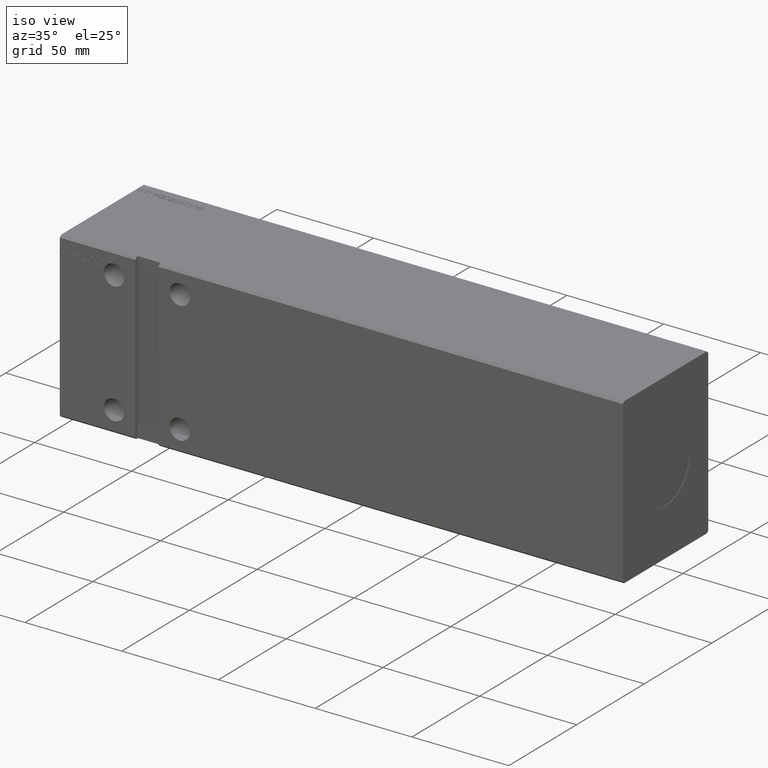
[diagram: clean part render]
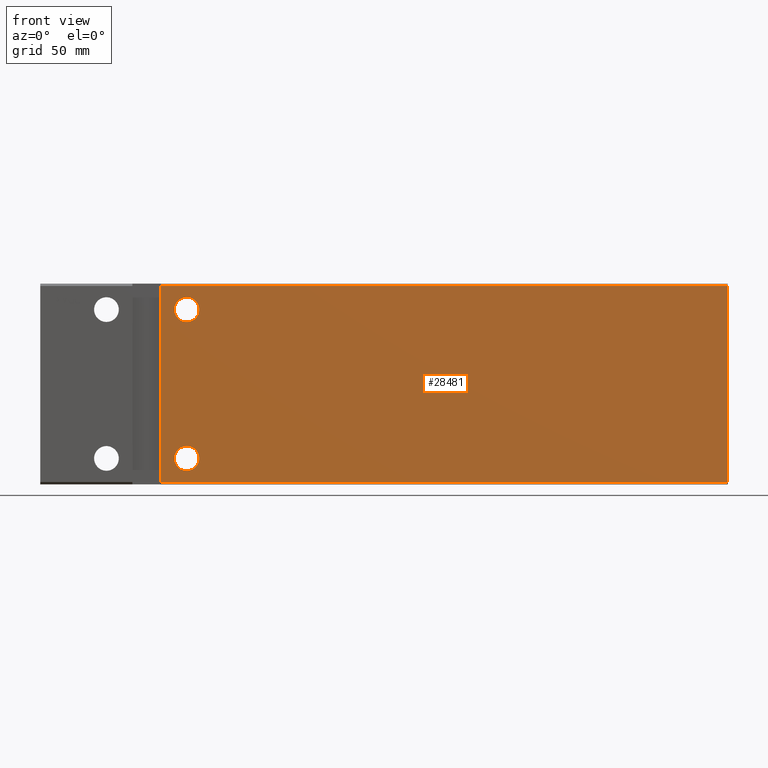
[diagram: tour spotlight — one face highlighted and labeled with its STEP entity id]
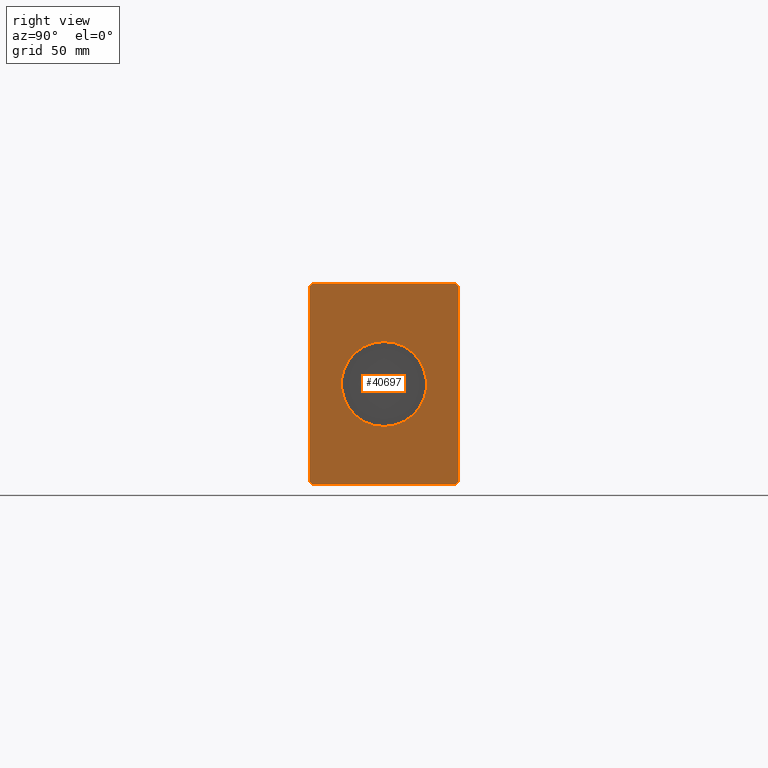
[diagram: tour spotlight — one face highlighted and labeled with its STEP entity id]
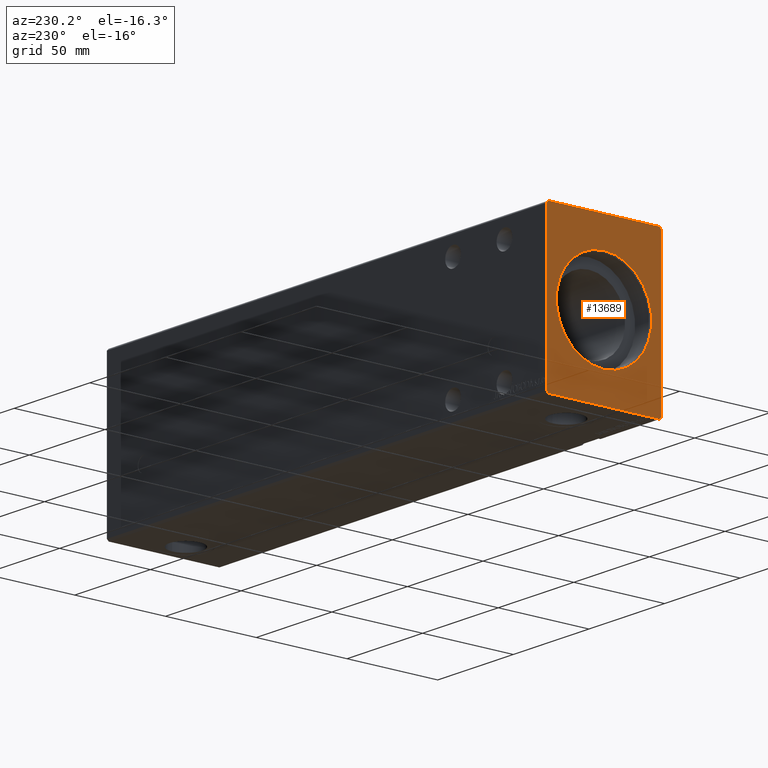
[diagram: tour spotlight — one face highlighted and labeled with its STEP entity id]
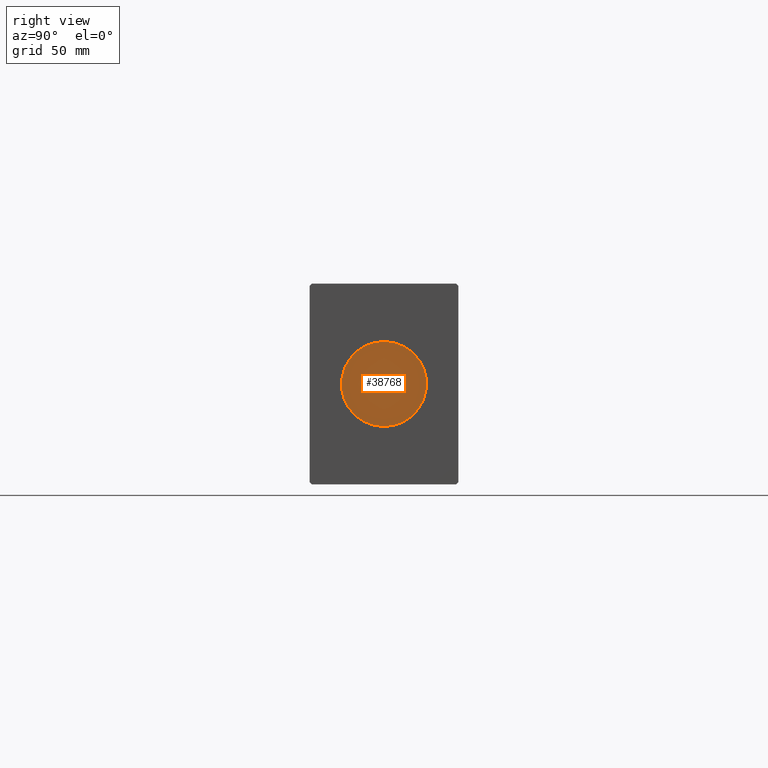
[diagram: tour spotlight — one face highlighted and labeled with its STEP entity id]
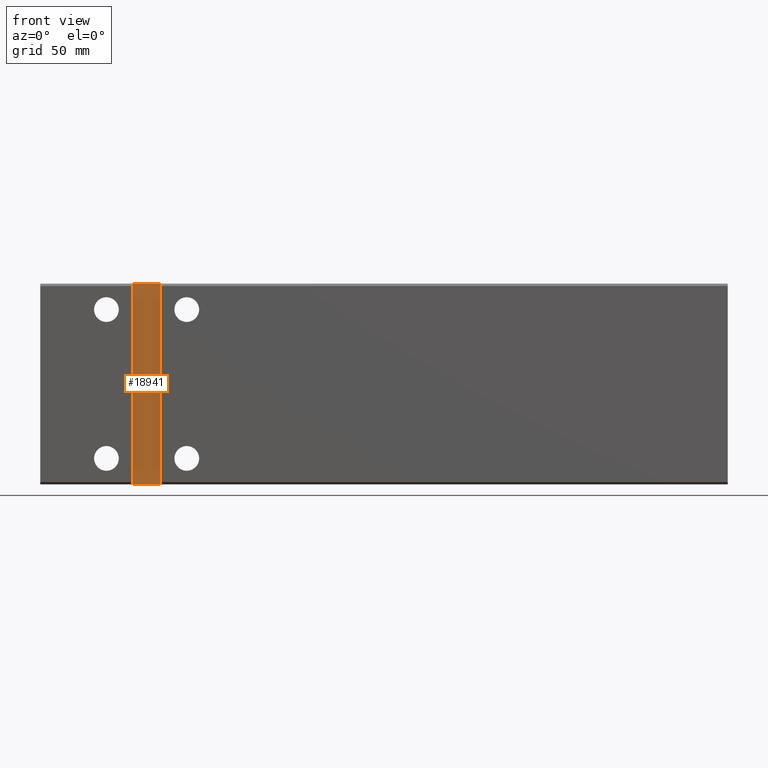
[diagram: tour spotlight — one face highlighted and labeled with its STEP entity id]
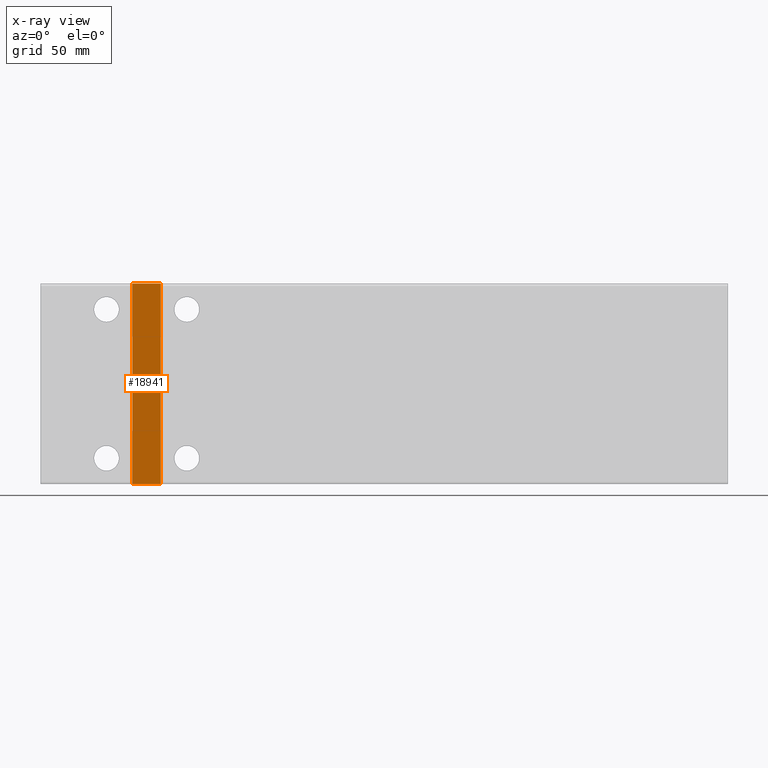
[diagram: x-ray of the same camera — body ghosted, this tour face saturated]
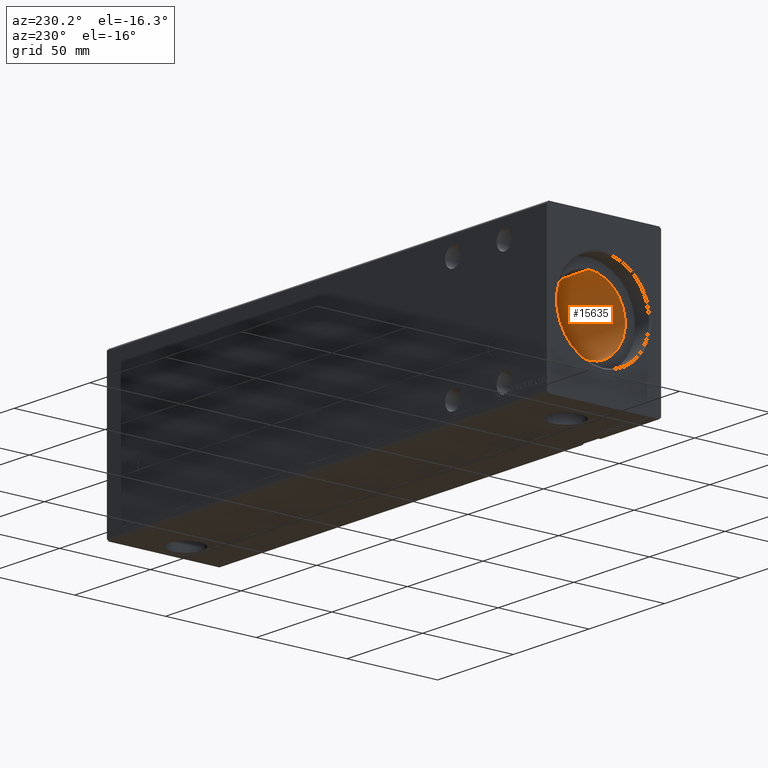
[diagram: tour spotlight — one face highlighted and labeled with its STEP entity id]
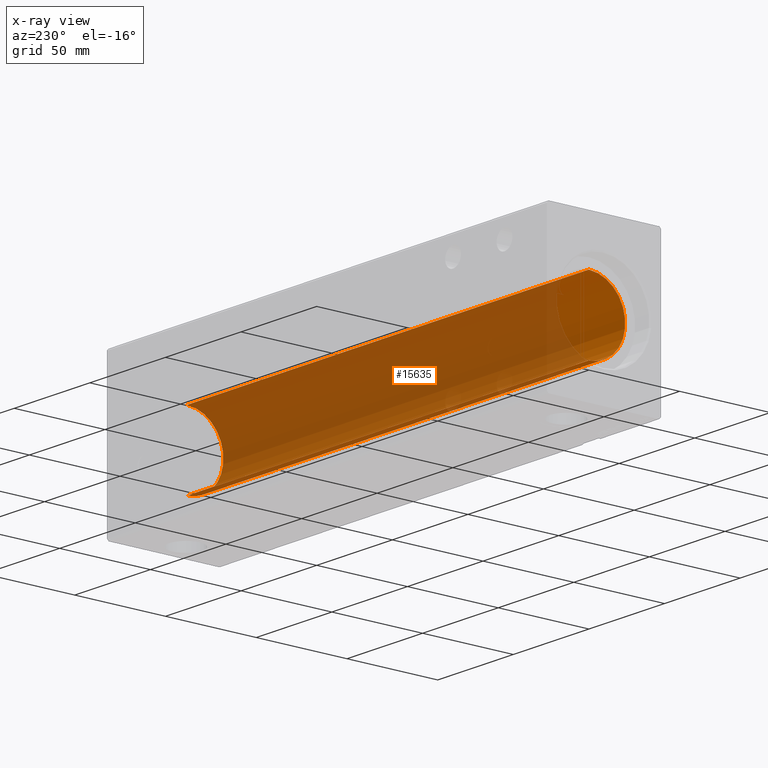
[diagram: x-ray of the same camera — body ghosted, this tour face saturated]
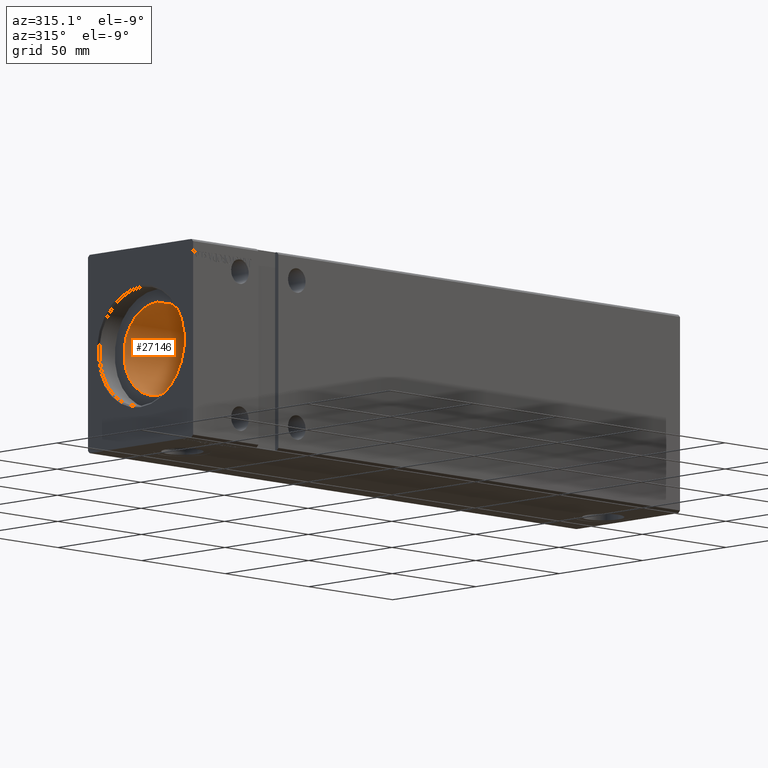
[diagram: tour spotlight — one face highlighted and labeled with its STEP entity id]
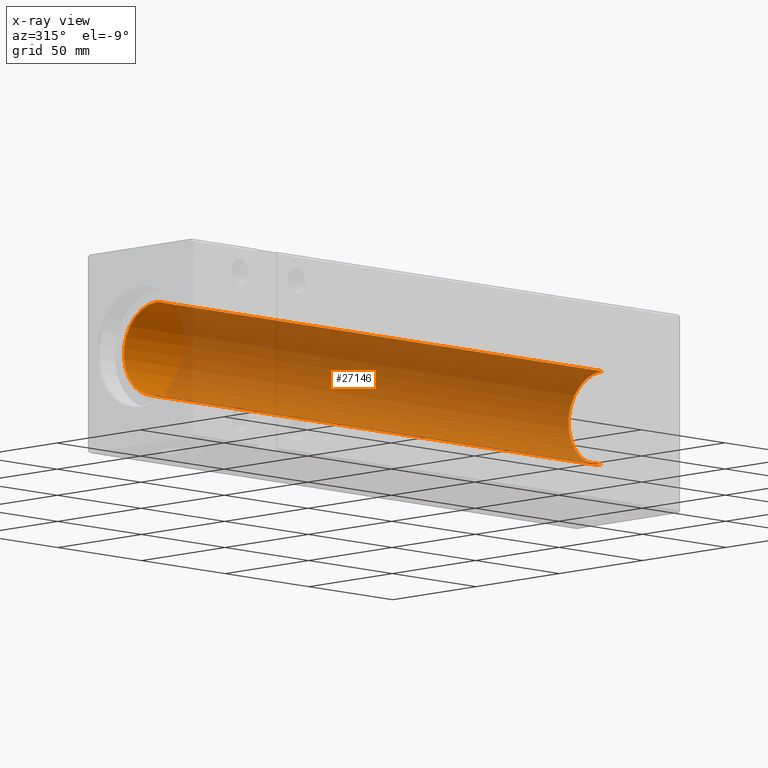
[diagram: x-ray of the same camera — body ghosted, this tour face saturated]
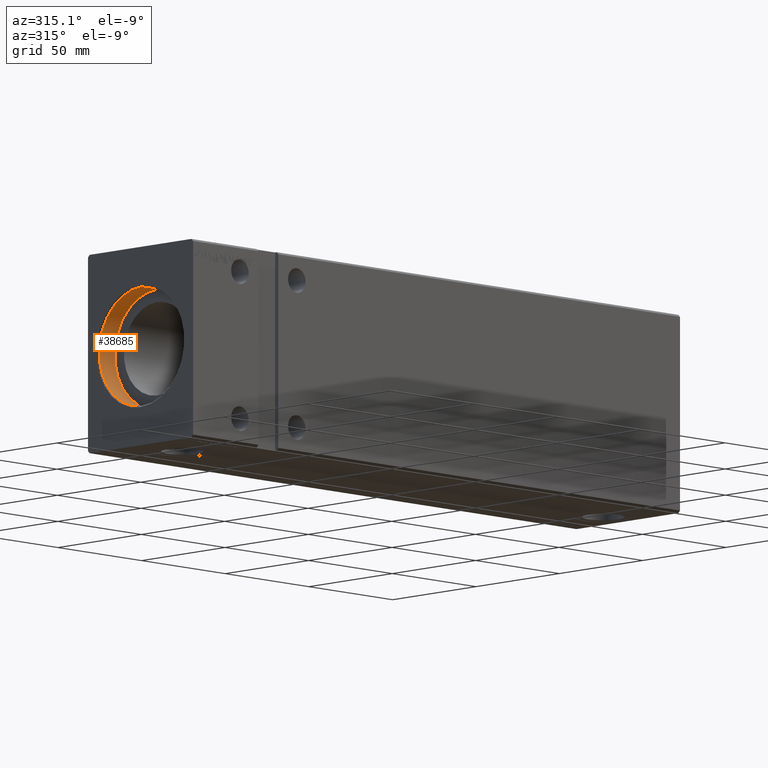
[diagram: tour spotlight — one face highlighted and labeled with its STEP entity id]
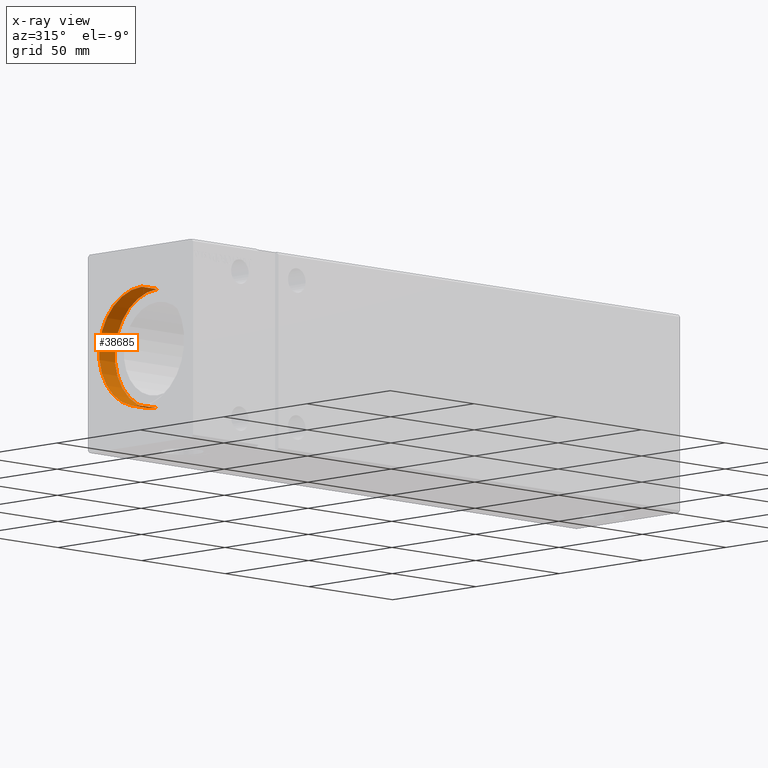
[diagram: x-ray of the same camera — body ghosted, this tour face saturated]
A machine part: a face-by-face anatomy tour. The part has 781 B-rep faces; the first image is the clean iso view, then the 8 largest visible faces are spotlighted one at a time (largest first), each with its STEP entity span.

Face 1 — front view, entity #28481. In plain terms, the highlighted planar face has unit normal (-0, 1, 0).
Definition (entity closure, byte-faithful):
#548 = AXIS2_PLACEMENT_3D ( 'NONE', #27003, #14590, #39843 ) ;
#619 = VERTEX_POINT ( 'NONE', #16780 ) ;
#707 = DIRECTION ( 'NONE',  ( 0.000000000000000000, -1.000000000000000000, -0.000000000000000000 ) ) ;
#1137 = DIRECTION ( 'NONE',  ( 0.000000000000000000, 0.000000000000000000, 1.000000000000000000 ) ) ;
#1741 = FACE_OUTER_BOUND ( 'NONE', #17863, .T. ) ;
#1945 = FACE_BOUND ( 'NONE', #23347, .T. ) ;
#2305 = DIRECTION ( 'NONE',  ( -3.265361837132813093E-16, -0.000000000000000000, 1.000000000000000000 ) ) ;
#2805 = DIRECTION ( 'NONE',  ( -0.000000000000000000, 1.000000000000000000, 0.000000000000000000 ) ) ;
#3089 = ORIENTED_EDGE ( 'NONE', *, *, #27446, .F. ) ;
#3145 = ORIENTED_EDGE ( 'NONE', *, *, #27920, .F. ) ;
#3218 = LINE ( 'NONE', #10261, #13613 ) ;
#3353 = CARTESIAN_POINT ( 'NONE',  ( 62.00000000000000711, -31.50000000000000000, -26.25000000000000355 ) ) ;
#4003 = EDGE_CURVE ( 'NONE', #6418, #18357, #5825, .T. ) ;
#4309 = CARTESIAN_POINT ( 'NONE',  ( 291.0000000000000000, -31.50000000000000000, -41.50000000000000711 ) ) ;
#5825 = LINE ( 'NONE', #30673, #30302 ) ;
#6418 = VERTEX_POINT ( 'NONE', #20752 ) ;
#6731 = ORIENTED_EDGE ( 'NONE', *, *, #12980, .F. ) ;
#7707 = DIRECTION ( 'NONE',  ( 0.000000000000000000, 0.000000000000000000, 1.000000000000000000 ) ) ;
#9600 = CARTESIAN_POINT ( 'NONE',  ( 62.00000000000000000, -31.50000000000000000, 31.50000000000000000 ) ) ;
#10261 = CARTESIAN_POINT ( 'NONE',  ( 291.0000000000000000, -31.50000000000000000, 41.49999999999999289 ) ) ;
#10438 = AXIS2_PLACEMENT_3D ( 'NONE', #9600, #23639, #7707 ) ;
#10744 = VERTEX_POINT ( 'NONE', #36854 ) ;
#10825 = CARTESIAN_POINT ( 'NONE',  ( 62.00000000000000711, -31.50000000000000000, -36.75000000000000000 ) ) ;
#11296 = VECTOR ( 'NONE', #22395, 1000.000000000000000 ) ;
#11308 = DIRECTION ( 'NONE',  ( 0.000000000000000000, 0.000000000000000000, 1.000000000000000000 ) ) ;
#12004 = EDGE_LOOP ( 'NONE', ( #3145, #6731 ) ) ;
#12980 = EDGE_CURVE ( 'NONE', #39891, #619, #33788, .T. ) ;
#13154 = CARTESIAN_POINT ( 'NONE',  ( 62.00000000000000000, -31.50000000000000000, 31.50000000000000000 ) ) ;
#13613 = VECTOR ( 'NONE', #15848, 1000.000000000000000 ) ;
#13748 = CIRCLE ( 'NONE', #10438, 5.250000000000004441 ) ;
#13986 = PLANE ( 'NONE',  #548 ) ;
#14386 = FACE_BOUND ( 'NONE', #12004, .T. ) ;
#14426 = DIRECTION ( 'NONE',  ( -1.000000000000000000, -0.000000000000000000, -0.000000000000000000 ) ) ;
#14480 = VERTEX_POINT ( 'NONE', #3353 ) ;
#14590 = DIRECTION ( 'NONE',  ( -0.000000000000000000, 1.000000000000000000, 0.000000000000000000 ) ) ;
#15519 = ORIENTED_EDGE ( 'NONE', *, *, #31100, .F. ) ;
#15848 = DIRECTION ( 'NONE',  ( -1.000000000000000000, -0.000000000000000000, -0.000000000000000000 ) ) ;
#16132 = AXIS2_PLACEMENT_3D ( 'NONE', #20822, #2805, #11308 ) ;
#16780 = CARTESIAN_POINT ( 'NONE',  ( 62.00000000000000000, -31.50000000000000000, 26.24999999999999645 ) ) ;
#17863 = EDGE_LOOP ( 'NONE', ( #34706, #22478, #3089, #15519 ) ) ;
#18357 = VERTEX_POINT ( 'NONE', #24037 ) ;
#19584 = DIRECTION ( 'NONE',  ( -0.000000000000000000, 1.000000000000000000, 0.000000000000000000 ) ) ;
#20553 = VERTEX_POINT ( 'NONE', #28531 ) ;
#20752 = CARTESIAN_POINT ( 'NONE',  ( 51.00000000000002132, -31.50000000000000000, -41.50000000000000711 ) ) ;
#20822 = CARTESIAN_POINT ( 'NONE',  ( 62.00000000000000711, -31.50000000000000000, -31.50000000000000000 ) ) ;
#21774 = EDGE_CURVE ( 'NONE', #23650, #14480, #23403, .T. ) ;
#22395 = DIRECTION ( 'NONE',  ( 0.000000000000000000, 0.000000000000000000, -1.000000000000000000 ) ) ;
#22478 = ORIENTED_EDGE ( 'NONE', *, *, #4003, .F. ) ;
#22529 = EDGE_CURVE ( 'NONE', #20553, #18357, #3218, .T. ) ;
#23347 = EDGE_LOOP ( 'NONE', ( #39012, #28791 ) ) ;
#23403 = CIRCLE ( 'NONE', #16132, 5.249999999999997335 ) ;
#23639 = DIRECTION ( 'NONE',  ( 0.000000000000000000, -1.000000000000000000, -0.000000000000000000 ) ) ;
#23650 = VERTEX_POINT ( 'NONE', #10825 ) ;
#24037 = CARTESIAN_POINT ( 'NONE',  ( 51.00000000000000000, -31.50000000000000000, 41.49999999999999289 ) ) ;
#25696 = LINE ( 'NONE', #32326, #11296 ) ;
#25758 = DIRECTION ( 'NONE',  ( 0.000000000000000000, 0.000000000000000000, 1.000000000000000000 ) ) ;
#27003 = CARTESIAN_POINT ( 'NONE',  ( 291.0000000000000000, -31.50000000000000000, 41.49999999999999289 ) ) ;
#27446 = EDGE_CURVE ( 'NONE', #10744, #6418, #36373, .T. ) ;
#27920 = EDGE_CURVE ( 'NONE', #619, #39891, #13748, .T. ) ;
#28481 = ADVANCED_FACE ( 'NONE', ( #1945, #1741, #14386 ), #13986, .F. ) ;
#28531 = CARTESIAN_POINT ( 'NONE',  ( 291.0000000000000000, -31.50000000000000000, 41.49999999999999289 ) ) ;
#28791 = ORIENTED_EDGE ( 'NONE', *, *, #31628, .T. ) ;
#29305 = CARTESIAN_POINT ( 'NONE',  ( 62.00000000000000711, -31.50000000000000000, -31.50000000000000000 ) ) ;
#30302 = VECTOR ( 'NONE', #2305, 1000.000000000000000 ) ;
#30673 = CARTESIAN_POINT ( 'NONE',  ( 51.00000000000000000, -31.50000000000000000, 42.49999999999999289 ) ) ;
#30790 = VECTOR ( 'NONE', #14426, 1000.000000000000000 ) ;
#31100 = EDGE_CURVE ( 'NONE', #20553, #10744, #25696, .T. ) ;
#31628 = EDGE_CURVE ( 'NONE', #14480, #23650, #33777, .T. ) ;
#32326 = CARTESIAN_POINT ( 'NONE',  ( 291.0000000000000000, -31.50000000000000000, 41.49999999999999289 ) ) ;
#33777 = CIRCLE ( 'NONE', #39742, 5.249999999999997335 ) ;
#33788 = CIRCLE ( 'NONE', #39729, 5.250000000000004441 ) ;
#34706 = ORIENTED_EDGE ( 'NONE', *, *, #22529, .T. ) ;
#36373 = LINE ( 'NONE', #4309, #30790 ) ;
#36854 = CARTESIAN_POINT ( 'NONE',  ( 291.0000000000000000, -31.50000000000000000, -41.50000000000000711 ) ) ;
#37276 = CARTESIAN_POINT ( 'NONE',  ( 62.00000000000000000, -31.50000000000000000, 36.75000000000000711 ) ) ;
#39012 = ORIENTED_EDGE ( 'NONE', *, *, #21774, .T. ) ;
#39729 = AXIS2_PLACEMENT_3D ( 'NONE', #13154, #707, #25758 ) ;
#39742 = AXIS2_PLACEMENT_3D ( 'NONE', #29305, #19584, #1137 ) ;
#39843 = DIRECTION ( 'NONE',  ( 0.000000000000000000, -0.000000000000000000, 1.000000000000000000 ) ) ;
#39891 = VERTEX_POINT ( 'NONE', #37276 ) ;

Face 2 — right view, entity #40697. In plain terms, the highlighted planar face has unit normal (1, 0, 0).
Definition (entity closure, byte-faithful):
#527 = LINE ( 'NONE', #34911, #29815 ) ;
#1272 = EDGE_CURVE ( 'NONE', #10744, #10932, #1682, .T. ) ;
#1682 = LINE ( 'NONE', #39170, #34332 ) ;
#2146 = DIRECTION ( 'NONE',  ( 0.000000000000000000, -0.7071067811865474617, 0.7071067811865474617 ) ) ;
#2715 = ORIENTED_EDGE ( 'NONE', *, *, #34753, .T. ) ;
#3411 = DIRECTION ( 'NONE',  ( 1.000000000000000000, 0.000000000000000000, 0.000000000000000000 ) ) ;
#3517 = VECTOR ( 'NONE', #29175, 1000.000000000000000 ) ;
#3724 = LINE ( 'NONE', #22964, #3517 ) ;
#4144 = AXIS2_PLACEMENT_3D ( 'NONE', #31215, #3411, #16047 ) ;
#5262 = LINE ( 'NONE', #30512, #14331 ) ;
#5412 = DIRECTION ( 'NONE',  ( 0.000000000000000000, 1.000000000000000000, 0.000000000000000000 ) ) ;
#8017 = ORIENTED_EDGE ( 'NONE', *, *, #1272, .T. ) ;
#8217 = ORIENTED_EDGE ( 'NONE', *, *, #31100, .T. ) ;
#8712 = LINE ( 'NONE', #40165, #32622 ) ;
#9018 = VERTEX_POINT ( 'NONE', #24620 ) ;
#10453 = CARTESIAN_POINT ( 'NONE',  ( 291.0000000000000000, 30.50000000000001776, -42.50000000000000711 ) ) ;
#10744 = VERTEX_POINT ( 'NONE', #36854 ) ;
#10932 = VERTEX_POINT ( 'NONE', #29565 ) ;
#10974 = ORIENTED_EDGE ( 'NONE', *, *, #23251, .F. ) ;
#11296 = VECTOR ( 'NONE', #22395, 1000.000000000000000 ) ;
#12335 = CARTESIAN_POINT ( 'NONE',  ( 291.0000000000000000, 30.50000000000001421, 42.49999999999999289 ) ) ;
#12765 = ORIENTED_EDGE ( 'NONE', *, *, #32200, .T. ) ;
#13208 = EDGE_CURVE ( 'NONE', #14593, #13685, #26781, .T. ) ;
#13685 = VERTEX_POINT ( 'NONE', #40509 ) ;
#14331 = VECTOR ( 'NONE', #2146, 1000.000000000000114 ) ;
#14593 = VERTEX_POINT ( 'NONE', #27680 ) ;
#14742 = DIRECTION ( 'NONE',  ( 0.000000000000000000, 0.7071067811865451302, -0.7071067811865500152 ) ) ;
#15771 = EDGE_CURVE ( 'NONE', #31843, #19288, #39143, .T. ) ;
#16047 = DIRECTION ( 'NONE',  ( 0.000000000000000000, 0.000000000000000000, -1.000000000000000000 ) ) ;
#16821 = CIRCLE ( 'NONE', #22116, 18.00000000000000000 ) ;
#17527 = EDGE_CURVE ( 'NONE', #13685, #34796, #3724, .T. ) ;
#18385 = EDGE_CURVE ( 'NONE', #10932, #14593, #8712, .T. ) ;
#18800 = PLANE ( 'NONE',  #29899 ) ;
#19288 = VERTEX_POINT ( 'NONE', #30711 ) ;
#19352 = LINE ( 'NONE', #12335, #36505 ) ;
#20553 = VERTEX_POINT ( 'NONE', #28531 ) ;
#20640 = EDGE_LOOP ( 'NONE', ( #26652, #2715, #12765, #8217, #8017, #40490, #21136, #40086 ) ) ;
#21042 = DIRECTION ( 'NONE',  ( 1.000000000000000000, 0.000000000000000000, 0.000000000000000000 ) ) ;
#21136 = ORIENTED_EDGE ( 'NONE', *, *, #13208, .T. ) ;
#21234 = VECTOR ( 'NONE', #23073, 999.9999999999998863 ) ;
#21369 = CARTESIAN_POINT ( 'NONE',  ( 291.0000000000000000, 0.000000000000000000, -18.00000000000000000 ) ) ;
#22116 = AXIS2_PLACEMENT_3D ( 'NONE', #30970, #21042, #33666 ) ;
#22395 = DIRECTION ( 'NONE',  ( 0.000000000000000000, 0.000000000000000000, -1.000000000000000000 ) ) ;
#22487 = DIRECTION ( 'NONE',  ( 0.000000000000000000, -0.7071067811865462405, -0.7071067811865489050 ) ) ;
#22964 = CARTESIAN_POINT ( 'NONE',  ( 291.0000000000000000, 31.50000000000001421, -41.50000000000000711 ) ) ;
#23073 = DIRECTION ( 'NONE',  ( 0.000000000000000000, 0.7071067811865462405, 0.7071067811865489050 ) ) ;
#23251 = EDGE_CURVE ( 'NONE', #19288, #31843, #16821, .T. ) ;
#24349 = VERTEX_POINT ( 'NONE', #37977 ) ;
#24620 = CARTESIAN_POINT ( 'NONE',  ( 291.0000000000000000, -30.50000000000000355, 42.49999999999999289 ) ) ;
#25696 = LINE ( 'NONE', #32326, #11296 ) ;
#26652 = ORIENTED_EDGE ( 'NONE', *, *, #27826, .T. ) ;
#26781 = LINE ( 'NONE', #10453, #21234 ) ;
#27680 = CARTESIAN_POINT ( 'NONE',  ( 291.0000000000000000, 30.50000000000001776, -42.50000000000000711 ) ) ;
#27826 = EDGE_CURVE ( 'NONE', #34796, #24349, #5262, .T. ) ;
#28045 = CARTESIAN_POINT ( 'NONE',  ( 291.0000000000000000, 31.50000000000001421, 41.49999999999999289 ) ) ;
#28307 = DIRECTION ( 'NONE',  ( 0.000000000000000000, 0.000000000000000000, -1.000000000000000000 ) ) ;
#28531 = CARTESIAN_POINT ( 'NONE',  ( 291.0000000000000000, -31.50000000000000000, 41.49999999999999289 ) ) ;
#29175 = DIRECTION ( 'NONE',  ( 0.000000000000000000, 0.000000000000000000, 1.000000000000000000 ) ) ;
#29565 = CARTESIAN_POINT ( 'NONE',  ( 291.0000000000000000, -30.50000000000000711, -42.50000000000000711 ) ) ;
#29815 = VECTOR ( 'NONE', #22487, 999.9999999999998863 ) ;
#29899 = AXIS2_PLACEMENT_3D ( 'NONE', #34526, #31420, #28307 ) ;
#30512 = CARTESIAN_POINT ( 'NONE',  ( 291.0000000000000000, 31.50000000000001421, 41.49999999999999289 ) ) ;
#30711 = CARTESIAN_POINT ( 'NONE',  ( 291.0000000000000000, 2.204364238465235428E-15, 18.00000000000000000 ) ) ;
#30970 = CARTESIAN_POINT ( 'NONE',  ( 291.0000000000000000, 0.000000000000000000, 0.000000000000000000 ) ) ;
#31100 = EDGE_CURVE ( 'NONE', #20553, #10744, #25696, .T. ) ;
#31215 = CARTESIAN_POINT ( 'NONE',  ( 291.0000000000000000, 0.000000000000000000, 0.000000000000000000 ) ) ;
#31362 = DIRECTION ( 'NONE',  ( 0.000000000000000000, -1.000000000000000000, 0.000000000000000000 ) ) ;
#31420 = DIRECTION ( 'NONE',  ( 1.000000000000000000, 0.000000000000000000, 0.000000000000000000 ) ) ;
#31622 = FACE_BOUND ( 'NONE', #38717, .T. ) ;
#31843 = VERTEX_POINT ( 'NONE', #21369 ) ;
#31965 = ORIENTED_EDGE ( 'NONE', *, *, #15771, .F. ) ;
#32200 = EDGE_CURVE ( 'NONE', #9018, #20553, #527, .T. ) ;
#32326 = CARTESIAN_POINT ( 'NONE',  ( 291.0000000000000000, -31.50000000000000000, 41.49999999999999289 ) ) ;
#32622 = VECTOR ( 'NONE', #5412, 1000.000000000000000 ) ;
#33666 = DIRECTION ( 'NONE',  ( 0.000000000000000000, 0.000000000000000000, -1.000000000000000000 ) ) ;
#34332 = VECTOR ( 'NONE', #14742, 1000.000000000000114 ) ;
#34526 = CARTESIAN_POINT ( 'NONE',  ( 291.0000000000000000, 0.000000000000000000, 0.000000000000000000 ) ) ;
#34753 = EDGE_CURVE ( 'NONE', #24349, #9018, #19352, .T. ) ;
#34796 = VERTEX_POINT ( 'NONE', #28045 ) ;
#34911 = CARTESIAN_POINT ( 'NONE',  ( 291.0000000000000000, -30.50000000000000355, 42.49999999999999289 ) ) ;
#36505 = VECTOR ( 'NONE', #31362, 1000.000000000000000 ) ;
#36854 = CARTESIAN_POINT ( 'NONE',  ( 291.0000000000000000, -31.50000000000000000, -41.50000000000000711 ) ) ;
#37977 = CARTESIAN_POINT ( 'NONE',  ( 291.0000000000000000, 30.50000000000001421, 42.49999999999999289 ) ) ;
#38717 = EDGE_LOOP ( 'NONE', ( #31965, #10974 ) ) ;
#39143 = CIRCLE ( 'NONE', #4144, 18.00000000000000000 ) ;
#39170 = CARTESIAN_POINT ( 'NONE',  ( 291.0000000000000000, -31.50000000000000000, -41.50000000000000711 ) ) ;
#40086 = ORIENTED_EDGE ( 'NONE', *, *, #17527, .T. ) ;
#40165 = CARTESIAN_POINT ( 'NONE',  ( 291.0000000000000000, -30.50000000000000711, -42.50000000000000711 ) ) ;
#40490 = ORIENTED_EDGE ( 'NONE', *, *, #18385, .T. ) ;
#40509 = CARTESIAN_POINT ( 'NONE',  ( 291.0000000000000000, 31.50000000000001421, -41.50000000000000711 ) ) ;
#40697 = ADVANCED_FACE ( 'NONE', ( #31622, #40732 ), #18800, .T. ) ;
#40732 = FACE_OUTER_BOUND ( 'NONE', #20640, .T. ) ;

Face 3 — auxiliary view, entity #13689. In plain terms, the highlighted planar face has unit normal (1, 0, 0).
Definition (entity closure, byte-faithful):
#1071 = EDGE_CURVE ( 'NONE', #5371, #28079, #24909, .T. ) ;
#1255 = LINE ( 'NONE', #32933, #39820 ) ;
#1426 = VERTEX_POINT ( 'NONE', #34181 ) ;
#1455 = EDGE_LOOP ( 'NONE', ( #2265, #15347, #8514, #4688, #19225, #11322, #29429, #28744 ) ) ;
#2265 = ORIENTED_EDGE ( 'NONE', *, *, #23769, .F. ) ;
#2458 = LINE ( 'NONE', #40751, #13244 ) ;
#2765 = CARTESIAN_POINT ( 'NONE',  ( 0.000000000000000000, 31.50000000000001421, -41.50000000000000711 ) ) ;
#3189 = VERTEX_POINT ( 'NONE', #37695 ) ;
#4688 = ORIENTED_EDGE ( 'NONE', *, *, #34693, .F. ) ;
#5225 = DIRECTION ( 'NONE',  ( 0.000000000000000000, 0.000000000000000000, -1.000000000000000000 ) ) ;
#5246 = CARTESIAN_POINT ( 'NONE',  ( 0.000000000000000000, 30.50000000000001421, 42.49999999999999289 ) ) ;
#5362 = CIRCLE ( 'NONE', #28491, 26.20000000000000284 ) ;
#5371 = VERTEX_POINT ( 'NONE', #16625 ) ;
#6137 = VERTEX_POINT ( 'NONE', #30171 ) ;
#7306 = DIRECTION ( 'NONE',  ( 0.000000000000000000, -0.7071067811865474617, 0.7071067811865474617 ) ) ;
#7373 = EDGE_CURVE ( 'NONE', #6137, #5371, #10488, .T. ) ;
#7582 = CARTESIAN_POINT ( 'NONE',  ( 0.000000000000000000, 30.50000000000001776, -42.50000000000000711 ) ) ;
#8178 = VECTOR ( 'NONE', #18090, 1000.000000000000000 ) ;
#8249 = VECTOR ( 'NONE', #7306, 1000.000000000000114 ) ;
#8296 = EDGE_CURVE ( 'NONE', #34002, #1426, #2458, .T. ) ;
#8514 = ORIENTED_EDGE ( 'NONE', *, *, #7373, .F. ) ;
#9464 = DIRECTION ( 'NONE',  ( 1.000000000000000000, 0.000000000000000000, 0.000000000000000000 ) ) ;
#10488 = LINE ( 'NONE', #7582, #15833 ) ;
#11224 = LINE ( 'NONE', #35666, #8249 ) ;
#11322 = ORIENTED_EDGE ( 'NONE', *, *, #27351, .F. ) ;
#11961 = FACE_BOUND ( 'NONE', #32813, .T. ) ;
#12579 = AXIS2_PLACEMENT_3D ( 'NONE', #36699, #14758, #5225 ) ;
#13224 = CARTESIAN_POINT ( 'NONE',  ( 0.000000000000000000, -31.50000000000000000, 41.49999999999999289 ) ) ;
#13244 = VECTOR ( 'NONE', #21917, 999.9999999999998863 ) ;
#13689 = ADVANCED_FACE ( 'NONE', ( #11961, #40909 ), #25185, .F. ) ;
#14592 = CARTESIAN_POINT ( 'NONE',  ( 0.000000000000000000, 30.50000000000001421, 42.49999999999999289 ) ) ;
#14697 = VECTOR ( 'NONE', #40466, 1000.000000000000000 ) ;
#14758 = DIRECTION ( 'NONE',  ( 1.000000000000000000, 0.000000000000000000, 0.000000000000000000 ) ) ;
#15347 = ORIENTED_EDGE ( 'NONE', *, *, #1071, .F. ) ;
#15408 = EDGE_CURVE ( 'NONE', #19869, #25300, #1255, .T. ) ;
#15833 = VECTOR ( 'NONE', #22907, 999.9999999999998863 ) ;
#15872 = CARTESIAN_POINT ( 'NONE',  ( 0.000000000000000000, 0.000000000000000000, 0.000000000000000000 ) ) ;
#16625 = CARTESIAN_POINT ( 'NONE',  ( 0.000000000000000000, 31.50000000000001421, -41.50000000000000711 ) ) ;
#17258 = LINE ( 'NONE', #5246, #8178 ) ;
#17414 = DIRECTION ( 'NONE',  ( 0.000000000000000000, 0.7071067811865451302, -0.7071067811865500152 ) ) ;
#18090 = DIRECTION ( 'NONE',  ( 0.000000000000000000, -1.000000000000000000, 0.000000000000000000 ) ) ;
#19225 = ORIENTED_EDGE ( 'NONE', *, *, #15408, .F. ) ;
#19274 = EDGE_CURVE ( 'NONE', #29686, #34002, #17258, .T. ) ;
#19869 = VERTEX_POINT ( 'NONE', #30202 ) ;
#21016 = CARTESIAN_POINT ( 'NONE',  ( 0.000000000000000000, -30.50000000000000711, -42.50000000000000711 ) ) ;
#21775 = VECTOR ( 'NONE', #34226, 1000.000000000000000 ) ;
#21917 = DIRECTION ( 'NONE',  ( 0.000000000000000000, -0.7071067811865462405, -0.7071067811865489050 ) ) ;
#21985 = VERTEX_POINT ( 'NONE', #40984 ) ;
#22907 = DIRECTION ( 'NONE',  ( 0.000000000000000000, 0.7071067811865462405, 0.7071067811865489050 ) ) ;
#23769 = EDGE_CURVE ( 'NONE', #28079, #29686, #11224, .T. ) ;
#24723 = CARTESIAN_POINT ( 'NONE',  ( 0.000000000000000000, 0.000000000000000000, 0.000000000000000000 ) ) ;
#24909 = LINE ( 'NONE', #2765, #21775 ) ;
#25185 = PLANE ( 'NONE',  #35163 ) ;
#25300 = VERTEX_POINT ( 'NONE', #30700 ) ;
#25500 = VECTOR ( 'NONE', #35773, 1000.000000000000000 ) ;
#27351 = EDGE_CURVE ( 'NONE', #1426, #19869, #28944, .T. ) ;
#27421 = DIRECTION ( 'NONE',  ( 0.000000000000000000, 0.000000000000000000, -1.000000000000000000 ) ) ;
#28079 = VERTEX_POINT ( 'NONE', #40182 ) ;
#28430 = CIRCLE ( 'NONE', #12579, 26.20000000000000284 ) ;
#28491 = AXIS2_PLACEMENT_3D ( 'NONE', #24723, #36545, #27421 ) ;
#28744 = ORIENTED_EDGE ( 'NONE', *, *, #19274, .F. ) ;
#28944 = LINE ( 'NONE', #13224, #25500 ) ;
#29429 = ORIENTED_EDGE ( 'NONE', *, *, #8296, .F. ) ;
#29686 = VERTEX_POINT ( 'NONE', #14592 ) ;
#29770 = CARTESIAN_POINT ( 'NONE',  ( 0.000000000000000000, -30.50000000000000355, 42.49999999999999289 ) ) ;
#30078 = EDGE_CURVE ( 'NONE', #21985, #3189, #28430, .T. ) ;
#30171 = CARTESIAN_POINT ( 'NONE',  ( 0.000000000000000000, 30.50000000000001776, -42.50000000000000711 ) ) ;
#30202 = CARTESIAN_POINT ( 'NONE',  ( 0.000000000000000000, -31.50000000000000000, -41.50000000000000711 ) ) ;
#30700 = CARTESIAN_POINT ( 'NONE',  ( 0.000000000000000000, -30.50000000000000711, -42.50000000000000711 ) ) ;
#32398 = EDGE_CURVE ( 'NONE', #3189, #21985, #5362, .T. ) ;
#32813 = EDGE_LOOP ( 'NONE', ( #34505, #38417 ) ) ;
#32933 = CARTESIAN_POINT ( 'NONE',  ( 0.000000000000000000, -31.50000000000000000, -41.50000000000000711 ) ) ;
#34002 = VERTEX_POINT ( 'NONE', #29770 ) ;
#34052 = LINE ( 'NONE', #21016, #14697 ) ;
#34181 = CARTESIAN_POINT ( 'NONE',  ( 0.000000000000000000, -31.50000000000000000, 41.49999999999999289 ) ) ;
#34226 = DIRECTION ( 'NONE',  ( 0.000000000000000000, 0.000000000000000000, 1.000000000000000000 ) ) ;
#34505 = ORIENTED_EDGE ( 'NONE', *, *, #32398, .T. ) ;
#34693 = EDGE_CURVE ( 'NONE', #25300, #6137, #34052, .T. ) ;
#34714 = DIRECTION ( 'NONE',  ( 0.000000000000000000, 0.000000000000000000, -1.000000000000000000 ) ) ;
#35163 = AXIS2_PLACEMENT_3D ( 'NONE', #15872, #9464, #34714 ) ;
#35666 = CARTESIAN_POINT ( 'NONE',  ( 0.000000000000000000, 31.50000000000001421, 41.49999999999999289 ) ) ;
#35773 = DIRECTION ( 'NONE',  ( 0.000000000000000000, 0.000000000000000000, -1.000000000000000000 ) ) ;
#36545 = DIRECTION ( 'NONE',  ( 1.000000000000000000, 0.000000000000000000, 0.000000000000000000 ) ) ;
#36699 = CARTESIAN_POINT ( 'NONE',  ( 0.000000000000000000, 0.000000000000000000, 0.000000000000000000 ) ) ;
#37695 = CARTESIAN_POINT ( 'NONE',  ( 0.000000000000000000, 0.000000000000000000, 26.20000000000000284 ) ) ;
#38417 = ORIENTED_EDGE ( 'NONE', *, *, #30078, .T. ) ;
#39820 = VECTOR ( 'NONE', #17414, 1000.000000000000114 ) ;
#40182 = CARTESIAN_POINT ( 'NONE',  ( 0.000000000000000000, 31.50000000000001421, 41.49999999999999289 ) ) ;
#40466 = DIRECTION ( 'NONE',  ( 0.000000000000000000, 1.000000000000000000, 0.000000000000000000 ) ) ;
#40751 = CARTESIAN_POINT ( 'NONE',  ( 0.000000000000000000, -30.50000000000000355, 42.49999999999999289 ) ) ;
#40909 = FACE_OUTER_BOUND ( 'NONE', #1455, .T. ) ;
#40984 = CARTESIAN_POINT ( 'NONE',  ( 0.000000000000000000, 3.208574613766065694E-15, -26.20000000000000284 ) ) ;

Face 4 — right view, entity #38768. In plain terms, the highlighted planar face has unit normal (1, 0, 0).
Definition (entity closure, byte-faithful):
#1434 = DIRECTION ( 'NONE',  ( 1.000000000000000000, 0.000000000000000000, 0.000000000000000000 ) ) ;
#1567 = CIRCLE ( 'NONE', #30669, 18.00000000000000000 ) ;
#1952 = AXIS2_PLACEMENT_3D ( 'NONE', #38734, #1434, #36036 ) ;
#3900 = CARTESIAN_POINT ( 'NONE',  ( 290.8000000000000114, 0.000000000000000000, -18.00000000000000000 ) ) ;
#5353 = DIRECTION ( 'NONE',  ( 1.000000000000000000, 0.000000000000000000, 0.000000000000000000 ) ) ;
#7397 = AXIS2_PLACEMENT_3D ( 'NONE', #29993, #5353, #8045 ) ;
#7837 = FACE_OUTER_BOUND ( 'NONE', #11444, .T. ) ;
#8045 = DIRECTION ( 'NONE',  ( 0.000000000000000000, 0.000000000000000000, -1.000000000000000000 ) ) ;
#8866 = EDGE_CURVE ( 'NONE', #20741, #32854, #19828, .T. ) ;
#11444 = EDGE_LOOP ( 'NONE', ( #23479, #13286 ) ) ;
#13286 = ORIENTED_EDGE ( 'NONE', *, *, #20674, .T. ) ;
#15092 = DIRECTION ( 'NONE',  ( 0.000000000000000000, 0.000000000000000000, -1.000000000000000000 ) ) ;
#19021 = DIRECTION ( 'NONE',  ( 1.000000000000000000, 0.000000000000000000, 0.000000000000000000 ) ) ;
#19828 = CIRCLE ( 'NONE', #1952, 18.00000000000000000 ) ;
#20674 = EDGE_CURVE ( 'NONE', #32854, #20741, #1567, .T. ) ;
#20741 = VERTEX_POINT ( 'NONE', #3900 ) ;
#21075 = PLANE ( 'NONE',  #7397 ) ;
#22597 = CARTESIAN_POINT ( 'NONE',  ( 290.8000000000000114, 2.204364238465235428E-15, 18.00000000000000000 ) ) ;
#23479 = ORIENTED_EDGE ( 'NONE', *, *, #8866, .T. ) ;
#29993 = CARTESIAN_POINT ( 'NONE',  ( 290.8000000000000114, 0.000000000000000000, 0.000000000000000000 ) ) ;
#30669 = AXIS2_PLACEMENT_3D ( 'NONE', #31025, #19021, #15092 ) ;
#31025 = CARTESIAN_POINT ( 'NONE',  ( 290.8000000000000114, 0.000000000000000000, 0.000000000000000000 ) ) ;
#32854 = VERTEX_POINT ( 'NONE', #22597 ) ;
#36036 = DIRECTION ( 'NONE',  ( 0.000000000000000000, 0.000000000000000000, -1.000000000000000000 ) ) ;
#38734 = CARTESIAN_POINT ( 'NONE',  ( 290.8000000000000114, 0.000000000000000000, 0.000000000000000000 ) ) ;
#38768 = ADVANCED_FACE ( 'NONE', ( #7837 ), #21075, .T. ) ;

Face 5 — front view, entity #18941. An x-ray twin of the same camera follows (body ghosted, this face saturated) — the face is partly hidden behind the body. In plain terms, the highlighted planar face has unit normal (0, -1, 0).
Definition (entity closure, byte-faithful):
#306 = VERTEX_POINT ( 'NONE', #29079 ) ;
#551 = EDGE_CURVE ( 'NONE', #16561, #306, #13678, .T. ) ;
#1163 = DIRECTION ( 'NONE',  ( 0.000000000000000000, -0.000000000000000000, -1.000000000000000000 ) ) ;
#2406 = ORIENTED_EDGE ( 'NONE', *, *, #551, .T. ) ;
#3304 = VECTOR ( 'NONE', #31444, 1000.000000000000000 ) ;
#6398 = LINE ( 'NONE', #37459, #3304 ) ;
#9085 = EDGE_CURVE ( 'NONE', #306, #37238, #6398, .T. ) ;
#9240 = ORIENTED_EDGE ( 'NONE', *, *, #19494, .T. ) ;
#11497 = VECTOR ( 'NONE', #12494, 1000.000000000000000 ) ;
#12494 = DIRECTION ( 'NONE',  ( -3.265361837132813093E-16, -0.000000000000000000, 1.000000000000000000 ) ) ;
#13479 = DIRECTION ( 'NONE',  ( -8.163404592832032733E-17, 0.000000000000000000, -1.000000000000000000 ) ) ;
#13678 = LINE ( 'NONE', #30005, #24370 ) ;
#14213 = DIRECTION ( 'NONE',  ( 0.000000000000000000, -1.000000000000000000, 0.000000000000000000 ) ) ;
#16367 = ORIENTED_EDGE ( 'NONE', *, *, #9085, .T. ) ;
#16561 = VERTEX_POINT ( 'NONE', #26065 ) ;
#17600 = EDGE_LOOP ( 'NONE', ( #9240, #34712, #2406, #16367 ) ) ;
#18491 = LINE ( 'NONE', #40834, #11497 ) ;
#18941 = ADVANCED_FACE ( 'NONE', ( #29532 ), #33039, .T. ) ;
#19494 = EDGE_CURVE ( 'NONE', #37238, #32040, #18491, .T. ) ;
#20036 = AXIS2_PLACEMENT_3D ( 'NONE', #23334, #14213, #1163 ) ;
#20850 = CARTESIAN_POINT ( 'NONE',  ( 51.00000000000000000, -29.50000000000000000, 42.49999999999999289 ) ) ;
#23334 = CARTESIAN_POINT ( 'NONE',  ( 0.000000000000000000, -29.50000000000000000, 1.101411730778925047E-16 ) ) ;
#24370 = VECTOR ( 'NONE', #13479, 1000.000000000000000 ) ;
#25715 = EDGE_CURVE ( 'NONE', #32040, #16561, #32232, .T. ) ;
#26065 = CARTESIAN_POINT ( 'NONE',  ( 39.00000000000000000, -29.50000000000000000, 42.49999999999999289 ) ) ;
#29079 = CARTESIAN_POINT ( 'NONE',  ( 38.99999999999999289, -29.50000000000000000, -42.50000000000000711 ) ) ;
#29332 = DIRECTION ( 'NONE',  ( -1.000000000000000000, -0.000000000000000000, -0.000000000000000000 ) ) ;
#29439 = VECTOR ( 'NONE', #29332, 1000.000000000000000 ) ;
#29532 = FACE_OUTER_BOUND ( 'NONE', #17600, .T. ) ;
#30005 = CARTESIAN_POINT ( 'NONE',  ( 39.00000000000000000, -29.50000000000000000, 42.49999999999999289 ) ) ;
#31444 = DIRECTION ( 'NONE',  ( 1.000000000000000000, 0.000000000000000000, 0.000000000000000000 ) ) ;
#32040 = VERTEX_POINT ( 'NONE', #20850 ) ;
#32232 = LINE ( 'NONE', #35752, #29439 ) ;
#33039 = PLANE ( 'NONE',  #20036 ) ;
#34246 = CARTESIAN_POINT ( 'NONE',  ( 51.00000000000002132, -29.50000000000000000, -42.50000000000000711 ) ) ;
#34712 = ORIENTED_EDGE ( 'NONE', *, *, #25715, .T. ) ;
#35752 = CARTESIAN_POINT ( 'NONE',  ( 39.00000000000000000, -29.50000000000000000, 42.49999999999999289 ) ) ;
#37238 = VERTEX_POINT ( 'NONE', #34246 ) ;
#37459 = CARTESIAN_POINT ( 'NONE',  ( 38.99999999999999289, -29.50000000000000000, -42.50000000000000711 ) ) ;
#40834 = CARTESIAN_POINT ( 'NONE',  ( 51.00000000000000000, -29.50000000000000000, 42.49999999999999289 ) ) ;

Face 6 — auxiliary view, entity #15635. An x-ray twin of the same camera follows (body ghosted, this face saturated) — the face is partly hidden behind the body. In plain terms, the highlighted cylindrical surface (partial cylindrical patch) has radius 20 mm, axis along (-1, -0, -0).
Definition (entity closure, byte-faithful):
#216 = VERTEX_POINT ( 'NONE', #36571 ) ;
#622 = CARTESIAN_POINT ( 'NONE',  ( 10.00000000000000888, 0.000000000000000000, 20.00000000000000000 ) ) ;
#1690 = EDGE_CURVE ( 'NONE', #10067, #8087, #32352, .T. ) ;
#3376 = VECTOR ( 'NONE', #21669, 1000.000000000000000 ) ;
#3425 = DIRECTION ( 'NONE',  ( 0.000000000000000000, 0.000000000000000000, 1.000000000000000000 ) ) ;
#5903 = VECTOR ( 'NONE', #6359, 1000.000000000000000 ) ;
#6246 = CIRCLE ( 'NONE', #11541, 20.00000000000000000 ) ;
#6359 = DIRECTION ( 'NONE',  ( -1.000000000000000000, -0.000000000000000000, -0.000000000000000000 ) ) ;
#7272 = EDGE_CURVE ( 'NONE', #216, #8087, #12576, .T. ) ;
#8087 = VERTEX_POINT ( 'NONE', #622 ) ;
#8871 = ORIENTED_EDGE ( 'NONE', *, *, #22517, .F. ) ;
#10067 = VERTEX_POINT ( 'NONE', #14042 ) ;
#11541 = AXIS2_PLACEMENT_3D ( 'NONE', #22881, #40887, #3425 ) ;
#12031 = CARTESIAN_POINT ( 'NONE',  ( 275.6999999999999886, 0.000000000000000000, 0.000000000000000000 ) ) ;
#12439 = CYLINDRICAL_SURFACE ( 'NONE', #18674, 20.00000000000000000 ) ;
#12576 = LINE ( 'NONE', #15676, #5903 ) ;
#14042 = CARTESIAN_POINT ( 'NONE',  ( 10.00000000000000888, 2.449293598294706513E-15, -20.00000000000000000 ) ) ;
#15540 = FACE_OUTER_BOUND ( 'NONE', #36438, .T. ) ;
#15635 = ADVANCED_FACE ( 'NONE', ( #15540 ), #12439, .F. ) ;
#15676 = CARTESIAN_POINT ( 'NONE',  ( 275.6999999999999886, 0.000000000000000000, 20.00000000000000000 ) ) ;
#17254 = CARTESIAN_POINT ( 'NONE',  ( 275.6999999999999886, 2.449293598294706513E-15, -20.00000000000000000 ) ) ;
#17349 = ORIENTED_EDGE ( 'NONE', *, *, #32134, .T. ) ;
#18108 = VERTEX_POINT ( 'NONE', #17254 ) ;
#18674 = AXIS2_PLACEMENT_3D ( 'NONE', #12031, #37281, #24846 ) ;
#20844 = DIRECTION ( 'NONE',  ( 0.000000000000000000, 0.000000000000000000, 1.000000000000000000 ) ) ;
#21669 = DIRECTION ( 'NONE',  ( -1.000000000000000000, -0.000000000000000000, -0.000000000000000000 ) ) ;
#22517 = EDGE_CURVE ( 'NONE', #18108, #216, #6246, .T. ) ;
#22881 = CARTESIAN_POINT ( 'NONE',  ( 275.6999999999999886, 0.000000000000000000, 0.000000000000000000 ) ) ;
#24846 = DIRECTION ( 'NONE',  ( 0.000000000000000000, 0.000000000000000000, 1.000000000000000000 ) ) ;
#25114 = ORIENTED_EDGE ( 'NONE', *, *, #7272, .F. ) ;
#27050 = CARTESIAN_POINT ( 'NONE',  ( 10.00000000000000888, 0.000000000000000000, 0.000000000000000000 ) ) ;
#30982 = LINE ( 'NONE', #37411, #3376 ) ;
#32134 = EDGE_CURVE ( 'NONE', #18108, #10067, #30982, .T. ) ;
#32352 = CIRCLE ( 'NONE', #37617, 20.00000000000000000 ) ;
#32816 = ORIENTED_EDGE ( 'NONE', *, *, #1690, .T. ) ;
#36438 = EDGE_LOOP ( 'NONE', ( #8871, #17349, #32816, #25114 ) ) ;
#36571 = CARTESIAN_POINT ( 'NONE',  ( 275.6999999999999886, 0.000000000000000000, 20.00000000000000000 ) ) ;
#37281 = DIRECTION ( 'NONE',  ( -1.000000000000000000, -0.000000000000000000, -0.000000000000000000 ) ) ;
#37411 = CARTESIAN_POINT ( 'NONE',  ( 275.6999999999999886, 2.449293598294706513E-15, -20.00000000000000000 ) ) ;
#37617 = AXIS2_PLACEMENT_3D ( 'NONE', #27050, #39672, #20844 ) ;
#39672 = DIRECTION ( 'NONE',  ( -1.000000000000000000, 0.000000000000000000, 0.000000000000000000 ) ) ;
#40887 = DIRECTION ( 'NONE',  ( -1.000000000000000000, 0.000000000000000000, 0.000000000000000000 ) ) ;

Face 7 — auxiliary view, entity #27146. An x-ray twin of the same camera follows (body ghosted, this face saturated) — the face is partly hidden behind the body. In plain terms, the highlighted cylindrical surface (partial cylindrical patch) has radius 20 mm, axis along (-1, -0, -0).
Definition (entity closure, byte-faithful):
#216 = VERTEX_POINT ( 'NONE', #36571 ) ;
#622 = CARTESIAN_POINT ( 'NONE',  ( 10.00000000000000888, 0.000000000000000000, 20.00000000000000000 ) ) ;
#3376 = VECTOR ( 'NONE', #21669, 1000.000000000000000 ) ;
#4713 = CIRCLE ( 'NONE', #23888, 20.00000000000000000 ) ;
#5903 = VECTOR ( 'NONE', #6359, 1000.000000000000000 ) ;
#6359 = DIRECTION ( 'NONE',  ( -1.000000000000000000, -0.000000000000000000, -0.000000000000000000 ) ) ;
#7272 = EDGE_CURVE ( 'NONE', #216, #8087, #12576, .T. ) ;
#8065 = FACE_OUTER_BOUND ( 'NONE', #13395, .T. ) ;
#8087 = VERTEX_POINT ( 'NONE', #622 ) ;
#8475 = CIRCLE ( 'NONE', #19709, 20.00000000000000000 ) ;
#10067 = VERTEX_POINT ( 'NONE', #14042 ) ;
#12368 = DIRECTION ( 'NONE',  ( -1.000000000000000000, 0.000000000000000000, 0.000000000000000000 ) ) ;
#12576 = LINE ( 'NONE', #15676, #5903 ) ;
#12730 = EDGE_CURVE ( 'NONE', #8087, #10067, #4713, .T. ) ;
#13395 = EDGE_LOOP ( 'NONE', ( #27322, #18358, #16060, #29554 ) ) ;
#14042 = CARTESIAN_POINT ( 'NONE',  ( 10.00000000000000888, 2.449293598294706513E-15, -20.00000000000000000 ) ) ;
#15676 = CARTESIAN_POINT ( 'NONE',  ( 275.6999999999999886, 0.000000000000000000, 20.00000000000000000 ) ) ;
#16060 = ORIENTED_EDGE ( 'NONE', *, *, #7272, .T. ) ;
#16964 = DIRECTION ( 'NONE',  ( -1.000000000000000000, 0.000000000000000000, 0.000000000000000000 ) ) ;
#17254 = CARTESIAN_POINT ( 'NONE',  ( 275.6999999999999886, 2.449293598294706513E-15, -20.00000000000000000 ) ) ;
#18108 = VERTEX_POINT ( 'NONE', #17254 ) ;
#18358 = ORIENTED_EDGE ( 'NONE', *, *, #28295, .F. ) ;
#18774 = DIRECTION ( 'NONE',  ( 0.000000000000000000, 0.000000000000000000, 1.000000000000000000 ) ) ;
#19709 = AXIS2_PLACEMENT_3D ( 'NONE', #22795, #12368, #18774 ) ;
#20283 = CARTESIAN_POINT ( 'NONE',  ( 275.6999999999999886, 0.000000000000000000, 0.000000000000000000 ) ) ;
#21669 = DIRECTION ( 'NONE',  ( -1.000000000000000000, -0.000000000000000000, -0.000000000000000000 ) ) ;
#22795 = CARTESIAN_POINT ( 'NONE',  ( 275.6999999999999886, 0.000000000000000000, 0.000000000000000000 ) ) ;
#23888 = AXIS2_PLACEMENT_3D ( 'NONE', #38713, #16964, #26079 ) ;
#26079 = DIRECTION ( 'NONE',  ( 0.000000000000000000, 0.000000000000000000, 1.000000000000000000 ) ) ;
#27146 = ADVANCED_FACE ( 'NONE', ( #8065 ), #30413, .F. ) ;
#27322 = ORIENTED_EDGE ( 'NONE', *, *, #32134, .F. ) ;
#28295 = EDGE_CURVE ( 'NONE', #216, #18108, #8475, .T. ) ;
#29554 = ORIENTED_EDGE ( 'NONE', *, *, #12730, .T. ) ;
#30108 = AXIS2_PLACEMENT_3D ( 'NONE', #20283, #30209, #32905 ) ;
#30209 = DIRECTION ( 'NONE',  ( -1.000000000000000000, -0.000000000000000000, -0.000000000000000000 ) ) ;
#30413 = CYLINDRICAL_SURFACE ( 'NONE', #30108, 20.00000000000000000 ) ;
#30982 = LINE ( 'NONE', #37411, #3376 ) ;
#32134 = EDGE_CURVE ( 'NONE', #18108, #10067, #30982, .T. ) ;
#32905 = DIRECTION ( 'NONE',  ( 0.000000000000000000, 0.000000000000000000, 1.000000000000000000 ) ) ;
#36571 = CARTESIAN_POINT ( 'NONE',  ( 275.6999999999999886, 0.000000000000000000, 20.00000000000000000 ) ) ;
#37411 = CARTESIAN_POINT ( 'NONE',  ( 275.6999999999999886, 2.449293598294706513E-15, -20.00000000000000000 ) ) ;
#38713 = CARTESIAN_POINT ( 'NONE',  ( 10.00000000000000888, 0.000000000000000000, 0.000000000000000000 ) ) ;

Face 8 — auxiliary view, entity #38685. An x-ray twin of the same camera follows (body ghosted, this face saturated) — the face is partly hidden behind the body. In plain terms, the highlighted cylindrical surface (partial cylindrical patch) has radius 25.5 mm, axis along (-1, -0, -0).
Definition (entity closure, byte-faithful):
#396 = CARTESIAN_POINT ( 'NONE',  ( 10.00000000000000000, 3.122849337825750222E-15, -25.50000000000000000 ) ) ;
#1277 = DIRECTION ( 'NONE',  ( -1.000000000000000000, -0.000000000000000000, -0.000000000000000000 ) ) ;
#2448 = EDGE_CURVE ( 'NONE', #12496, #40482, #35016, .T. ) ;
#2694 = CARTESIAN_POINT ( 'NONE',  ( 10.00000000000000000, 0.000000000000000000, 0.000000000000000000 ) ) ;
#5194 = CARTESIAN_POINT ( 'NONE',  ( 10.00000000000000000, 0.000000000000000000, 25.50000000000000000 ) ) ;
#5714 = DIRECTION ( 'NONE',  ( 0.000000000000000000, 0.000000000000000000, 1.000000000000000000 ) ) ;
#9111 = CYLINDRICAL_SURFACE ( 'NONE', #39771, 25.50000000000000000 ) ;
#9219 = DIRECTION ( 'NONE',  ( -1.000000000000000000, 0.000000000000000000, 0.000000000000000000 ) ) ;
#12496 = VERTEX_POINT ( 'NONE', #5194 ) ;
#12641 = VECTOR ( 'NONE', #31501, 1000.000000000000000 ) ;
#12854 = FACE_OUTER_BOUND ( 'NONE', #30016, .T. ) ;
#12883 = CARTESIAN_POINT ( 'NONE',  ( 10.00000000000000000, 3.122849337825750222E-15, -25.50000000000000000 ) ) ;
#12931 = AXIS2_PLACEMENT_3D ( 'NONE', #31182, #15043, #18350 ) ;
#12987 = CARTESIAN_POINT ( 'NONE',  ( 0.7000000000000061728, 0.000000000000000000, 25.50000000000000000 ) ) ;
#14870 = VECTOR ( 'NONE', #1277, 1000.000000000000000 ) ;
#15043 = DIRECTION ( 'NONE',  ( -1.000000000000000000, 0.000000000000000000, 0.000000000000000000 ) ) ;
#15574 = ORIENTED_EDGE ( 'NONE', *, *, #23705, .T. ) ;
#17225 = CARTESIAN_POINT ( 'NONE',  ( 10.00000000000000000, 0.000000000000000000, 25.50000000000000000 ) ) ;
#17439 = LINE ( 'NONE', #17225, #14870 ) ;
#18350 = DIRECTION ( 'NONE',  ( 0.000000000000000000, 0.000000000000000000, -1.000000000000000000 ) ) ;
#20110 = ORIENTED_EDGE ( 'NONE', *, *, #2448, .F. ) ;
#23705 = EDGE_CURVE ( 'NONE', #12496, #24156, #17439, .T. ) ;
#24156 = VERTEX_POINT ( 'NONE', #12987 ) ;
#24485 = CARTESIAN_POINT ( 'NONE',  ( 0.7000000000000061728, 3.122849337825750222E-15, -25.50000000000000000 ) ) ;
#24882 = LINE ( 'NONE', #12883, #12641 ) ;
#25658 = DIRECTION ( 'NONE',  ( -1.000000000000000000, -0.000000000000000000, -0.000000000000000000 ) ) ;
#25678 = ORIENTED_EDGE ( 'NONE', *, *, #32777, .F. ) ;
#27542 = EDGE_CURVE ( 'NONE', #24156, #39433, #35413, .T. ) ;
#30016 = EDGE_LOOP ( 'NONE', ( #25678, #20110, #15574, #34804 ) ) ;
#30756 = CARTESIAN_POINT ( 'NONE',  ( 10.00000000000000000, 0.000000000000000000, 0.000000000000000000 ) ) ;
#31182 = CARTESIAN_POINT ( 'NONE',  ( 0.7000000000000061728, 0.000000000000000000, 0.000000000000000000 ) ) ;
#31501 = DIRECTION ( 'NONE',  ( -1.000000000000000000, -0.000000000000000000, -0.000000000000000000 ) ) ;
#32777 = EDGE_CURVE ( 'NONE', #40482, #39433, #24882, .T. ) ;
#34804 = ORIENTED_EDGE ( 'NONE', *, *, #27542, .T. ) ;
#35016 = CIRCLE ( 'NONE', #37649, 25.50000000000000000 ) ;
#35413 = CIRCLE ( 'NONE', #12931, 25.50000000000000000 ) ;
#37649 = AXIS2_PLACEMENT_3D ( 'NONE', #30756, #9219, #5714 ) ;
#38685 = ADVANCED_FACE ( 'NONE', ( #12854 ), #9111, .F. ) ;
#39433 = VERTEX_POINT ( 'NONE', #24485 ) ;
#39771 = AXIS2_PLACEMENT_3D ( 'NONE', #2694, #25658, #40978 ) ;
#40482 = VERTEX_POINT ( 'NONE', #396 ) ;
#40978 = DIRECTION ( 'NONE',  ( 0.000000000000000000, 0.000000000000000000, 1.000000000000000000 ) ) ;